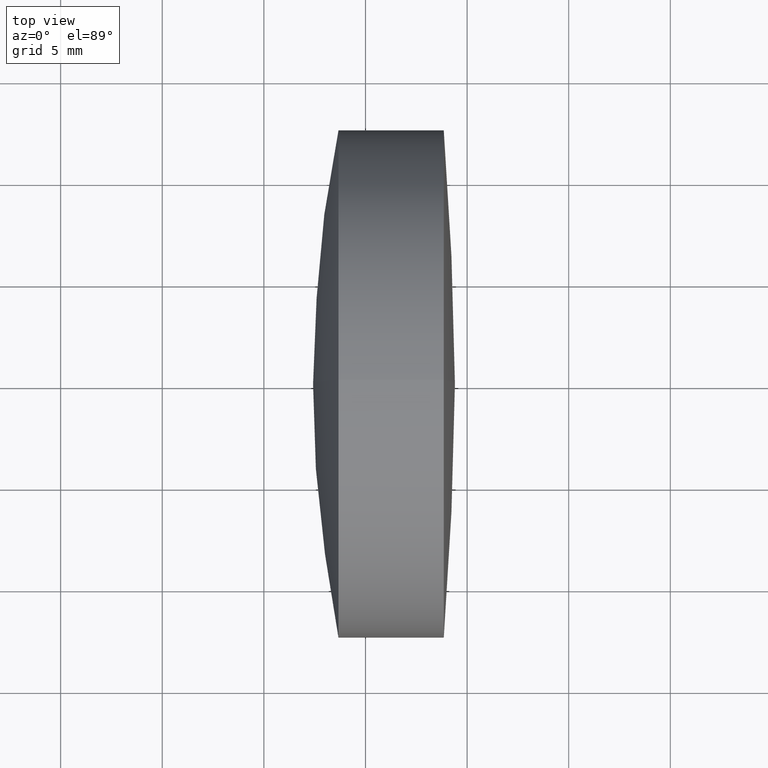
[diagram: clean part render]
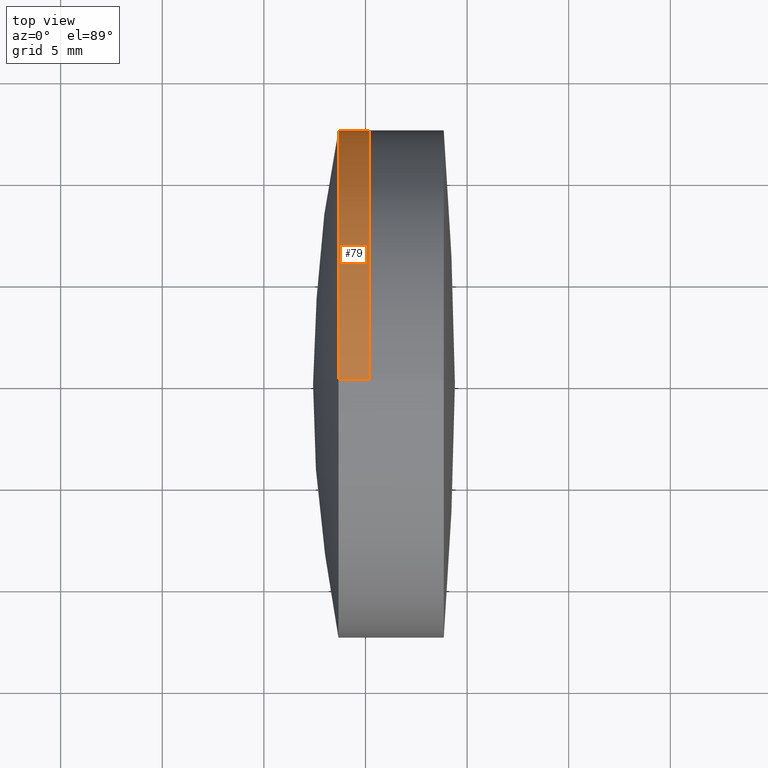
[diagram: same view with one face highlighted and labeled with its STEP entity id]
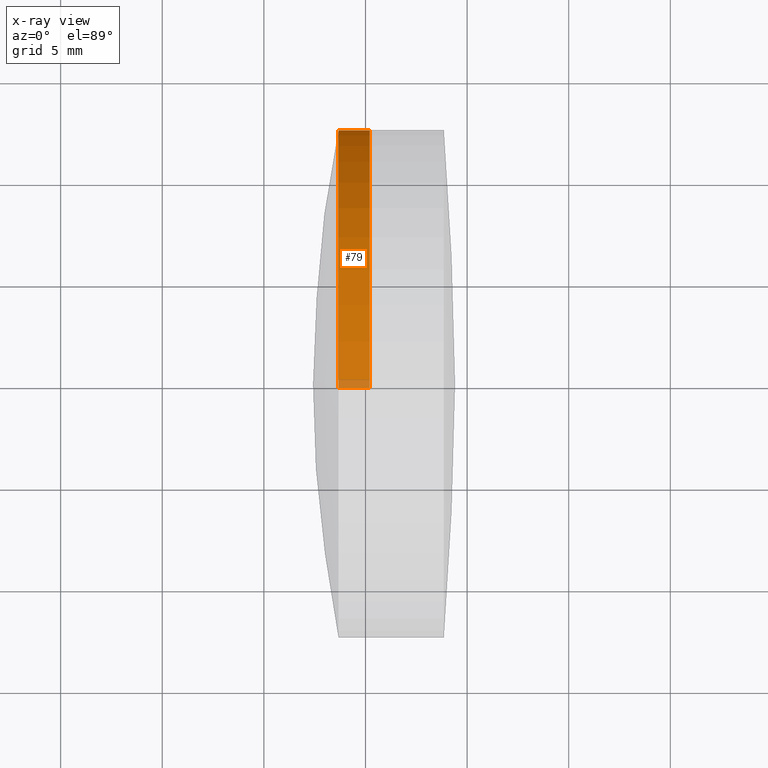
[diagram: x-ray of the same camera — body ghosted, the highlighted face saturated]
A machine part, top view. The second image highlights one B-rep face of the part: STEP entity #79.
The next image is the same camera in x-ray: the body ghosted, the highlighted face saturated — about 3% of this face is hidden behind the body in this view.
In plain terms, the highlighted cylindrical surface (partial cylindrical patch) has radius 12.5 mm, axis along (-1, -0, -0).
Its self-contained STEP definition (entity closure, byte-faithful):
#2 = EDGE_CURVE ( 'NONE', #74, #143, #54, .T. ) ;
#20 = DIRECTION ( 'NONE',  ( -1.000000000000000000, -0.0000000000000000000, -0.0000000000000000000 ) ) ;
#29 = LINE ( 'NONE', #101, #231 ) ;
#33 = CARTESIAN_POINT ( 'NONE',  ( -9.702612178336682500, 1.530808498934190100E-015, -12.49999999999998900 ) ) ;
#40 = DIRECTION ( 'NONE',  ( 0.0000000000000000000, 0.0000000000000000000, 1.000000000000000000 ) ) ;
#46 = CIRCLE ( 'NONE', #273, 12.49999999999998900 ) ;
#47 = EDGE_LOOP ( 'NONE', ( #347, #78, #252, #301 ) ) ;
#54 = CIRCLE ( 'NONE', #331, 12.49999999999998900 ) ;
#60 = DIRECTION ( 'NONE',  ( -1.000000000000000000, -0.0000000000000000000, -0.0000000000000000000 ) ) ;
#74 = VERTEX_POINT ( 'NONE', #97 ) ;
#78 = ORIENTED_EDGE ( 'NONE', *, *, #288, .T. ) ;
#79 = ADVANCED_FACE ( 'NONE', ( #245 ), #246, .T. ) ;
#86 = CARTESIAN_POINT ( 'NONE',  ( -9.702612178336682500, 0.0000000000000000000, 0.0000000000000000000 ) ) ;
#97 = CARTESIAN_POINT ( 'NONE',  ( 60.20977468710700000, 0.0000000000000000000, 12.49999999999998900 ) ) ;
#101 = CARTESIAN_POINT ( 'NONE',  ( -9.702612178336682500, 0.0000000000000000000, 12.49999999999998900 ) ) ;
#103 = CARTESIAN_POINT ( 'NONE',  ( 58.67124487653986600, 1.530808498934192300E-015, -12.50000000000003700 ) ) ;
#115 = DIRECTION ( 'NONE',  ( -1.000000000000000000, -0.0000000000000000000, -0.0000000000000000000 ) ) ;
#127 = EDGE_CURVE ( 'NONE', #142, #159, #46, .T. ) ;
#130 = DIRECTION ( 'NONE',  ( 0.0000000000000000000, 0.0000000000000000000, 1.000000000000000000 ) ) ;
#142 = VERTEX_POINT ( 'NONE', #254 ) ;
#143 = VERTEX_POINT ( 'NONE', #181 ) ;
#154 = AXIS2_PLACEMENT_3D ( 'NONE', #86, #208, #283 ) ;
#158 = DIRECTION ( 'NONE',  ( -1.000000000000000000, -0.0000000000000000000, -0.0000000000000000000 ) ) ;
#159 = VERTEX_POINT ( 'NONE', #103 ) ;
#162 = VECTOR ( 'NONE', #60, 1000.000000000000000 ) ;
#181 = CARTESIAN_POINT ( 'NONE',  ( 60.20977468710700000, 1.530808498934190100E-015, -12.49999999999998900 ) ) ;
#190 = LINE ( 'NONE', #33, #162 ) ;
#208 = DIRECTION ( 'NONE',  ( -1.000000000000000000, -0.0000000000000000000, -0.0000000000000000000 ) ) ;
#231 = VECTOR ( 'NONE', #20, 1000.000000000000000 ) ;
#245 = FACE_OUTER_BOUND ( 'NONE', #47, .T. ) ;
#246 = CYLINDRICAL_SURFACE ( 'NONE', #154, 12.49999999999998900 ) ;
#252 = ORIENTED_EDGE ( 'NONE', *, *, #127, .F. ) ;
#254 = CARTESIAN_POINT ( 'NONE',  ( 58.67124487653986600, 0.0000000000000000000, 12.50000000000000700 ) ) ;
#270 = CARTESIAN_POINT ( 'NONE',  ( 60.20977468710700000, 0.0000000000000000000, 0.0000000000000000000 ) ) ;
#273 = AXIS2_PLACEMENT_3D ( 'NONE', #282, #115, #40 ) ;
#282 = CARTESIAN_POINT ( 'NONE',  ( 58.67124487653985900, 0.0000000000000000000, 0.0000000000000000000 ) ) ;
#283 = DIRECTION ( 'NONE',  ( 0.0000000000000000000, 0.0000000000000000000, 1.000000000000000000 ) ) ;
#288 = EDGE_CURVE ( 'NONE', #143, #159, #190, .T. ) ;
#301 = ORIENTED_EDGE ( 'NONE', *, *, #312, .F. ) ;
#312 = EDGE_CURVE ( 'NONE', #74, #142, #29, .T. ) ;
#331 = AXIS2_PLACEMENT_3D ( 'NONE', #270, #158, #130 ) ;
#347 = ORIENTED_EDGE ( 'NONE', *, *, #2, .T. ) ;